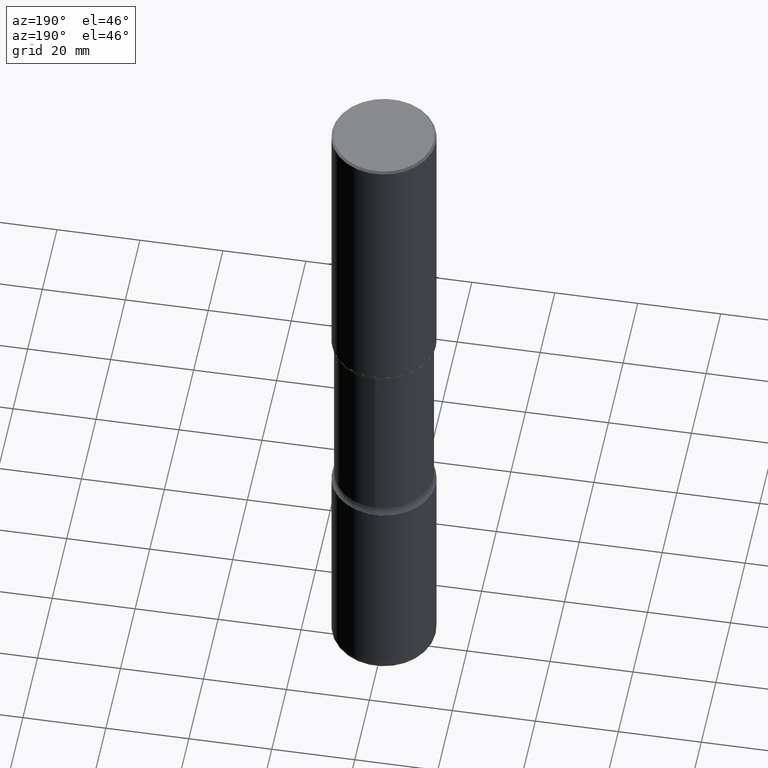
[diagram: clean part render]
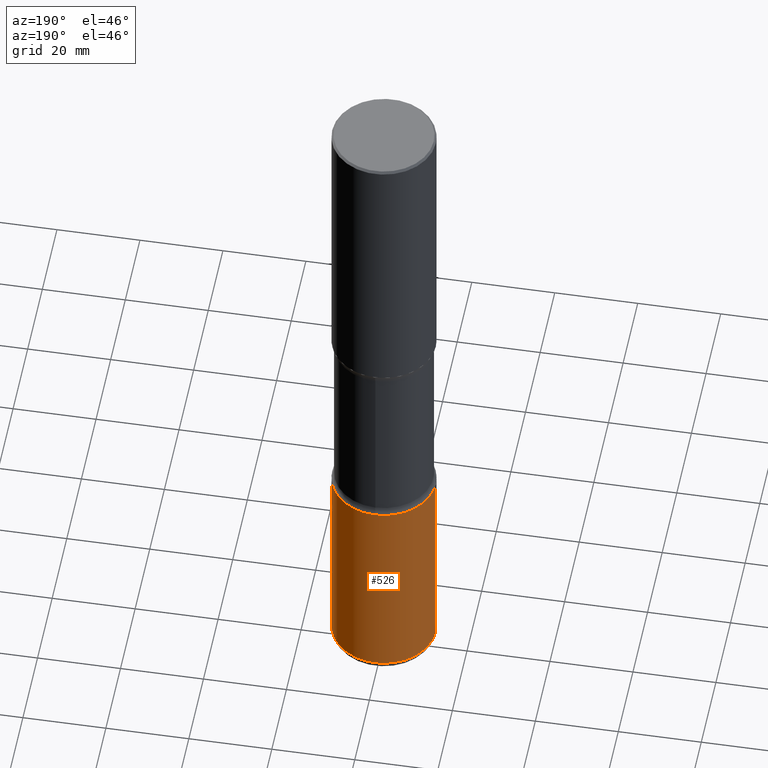
[diagram: same view with one face highlighted and labeled with its STEP entity id]
A machine part, auxiliary view. The second image highlights one B-rep face of the part: STEP entity #526.
In plain terms, the highlighted cylindrical surface (partial cylindrical patch) has radius 12.5006 mm, axis along (-0, 0, 1).
Its self-contained STEP definition (entity closure, byte-faithful):
#7 = CARTESIAN_POINT ( 'NONE',  ( 0.4921500000000003650, -3.436665081823298538E-15, 2.399810400207971564E-29 ) ) ;
#16 = ORIENTED_EDGE ( 'NONE', *, *, #276, .F. ) ;
#18 = CARTESIAN_POINT ( 'NONE',  ( 0.4921500000000008646, -2.646123877082442695E-14, -6.594500000000000028 ) ) ;
#25 = VERTEX_POINT ( 'NONE', #18 ) ;
#27 = FACE_OUTER_BOUND ( 'NONE', #172, .T. ) ;
#76 = CARTESIAN_POINT ( 'NONE',  ( 0.000000000000000000, 0.000000000000000000, 0.000000000000000000 ) ) ;
#81 = LINE ( 'NONE', #7, #239 ) ;
#91 = DIRECTION ( 'NONE',  ( 1.000000000000000000, -6.982962677686270655E-15, 0.000000000000000000 ) ) ;
#106 = VECTOR ( 'NONE', #501, 39.37007874015748143 ) ;
#108 = CARTESIAN_POINT ( 'NONE',  ( -0.4921500000000003650, 3.496936074043335658E-15, -2.420853904668953751E-29 ) ) ;
#161 = CARTESIAN_POINT ( 'NONE',  ( -0.4921500000000002539, -1.605675601601381657E-14, -4.606299999999999173 ) ) ;
#172 = EDGE_LOOP ( 'NONE', ( #531, #215, #181, #16 ) ) ;
#181 = ORIENTED_EDGE ( 'NONE', *, *, #202, .F. ) ;
#196 = LINE ( 'NONE', #108, #106 ) ;
#201 = CARTESIAN_POINT ( 'NONE',  ( 1.612664404238788252E-28, -2.302457368900112328E-14, -6.594500000000000028 ) ) ;
#202 = EDGE_CURVE ( 'NONE', #269, #552, #415, .T. ) ;
#213 = DIRECTION ( 'NONE',  ( 1.000000000000000000, -6.982962677686266711E-15, 4.876176775795935793E-29 ) ) ;
#215 = ORIENTED_EDGE ( 'NONE', *, *, #377, .T. ) ;
#221 = VERTEX_POINT ( 'NONE', #373 ) ;
#239 = VECTOR ( 'NONE', #287, 39.37007874015748143 ) ;
#269 = VERTEX_POINT ( 'NONE', #437 ) ;
#276 = EDGE_CURVE ( 'NONE', #25, #269, #81, .T. ) ;
#287 = DIRECTION ( 'NONE',  ( -2.445468806185136877E-29, 3.491481338843145188E-15, 1.000000000000000000 ) ) ;
#303 = CARTESIAN_POINT ( 'NONE',  ( 1.126456296193059450E-28, -1.608281049111318039E-14, -4.606299999999999173 ) ) ;
#304 = EDGE_CURVE ( 'NONE', #25, #221, #306, .T. ) ;
#306 = CIRCLE ( 'NONE', #522, 0.4921500000000005315 ) ;
#332 = DIRECTION ( 'NONE',  ( -2.445468806185136597E-29, 3.491481338843145583E-15, 1.000000000000000000 ) ) ;
#373 = CARTESIAN_POINT ( 'NONE',  ( -0.4921500000000008646, -1.952763761495778644E-14, -6.594500000000000028 ) ) ;
#377 = EDGE_CURVE ( 'NONE', #221, #552, #196, .T. ) ;
#415 = CIRCLE ( 'NONE', #537, 0.4921500000000002539 ) ;
#421 = DIRECTION ( 'NONE',  ( -2.445468806185136597E-29, 3.491481338843145583E-15, 1.000000000000000000 ) ) ;
#437 = CARTESIAN_POINT ( 'NONE',  ( 0.4921500000000002539, -1.951947557293647774E-14, -4.606299999999999173 ) ) ;
#450 = AXIS2_PLACEMENT_3D ( 'NONE', #76, #421, #213 ) ;
#480 = DIRECTION ( 'NONE',  ( -2.445468806185136597E-29, 3.491481338843145583E-15, 1.000000000000000000 ) ) ;
#501 = DIRECTION ( 'NONE',  ( -2.445468806185136877E-29, 3.491481338843145188E-15, 1.000000000000000000 ) ) ;
#522 = AXIS2_PLACEMENT_3D ( 'NONE', #201, #332, #546 ) ;
#526 = ADVANCED_FACE ( 'NONE', ( #27 ), #542, .T. ) ;
#531 = ORIENTED_EDGE ( 'NONE', *, *, #304, .T. ) ;
#537 = AXIS2_PLACEMENT_3D ( 'NONE', #303, #480, #91 ) ;
#542 = CYLINDRICAL_SURFACE ( 'NONE', #450, 0.4921500000000003650 ) ;
#546 = DIRECTION ( 'NONE',  ( 1.000000000000000000, -6.982962677686266711E-15, 0.000000000000000000 ) ) ;
#552 = VERTEX_POINT ( 'NONE', #161 ) ;